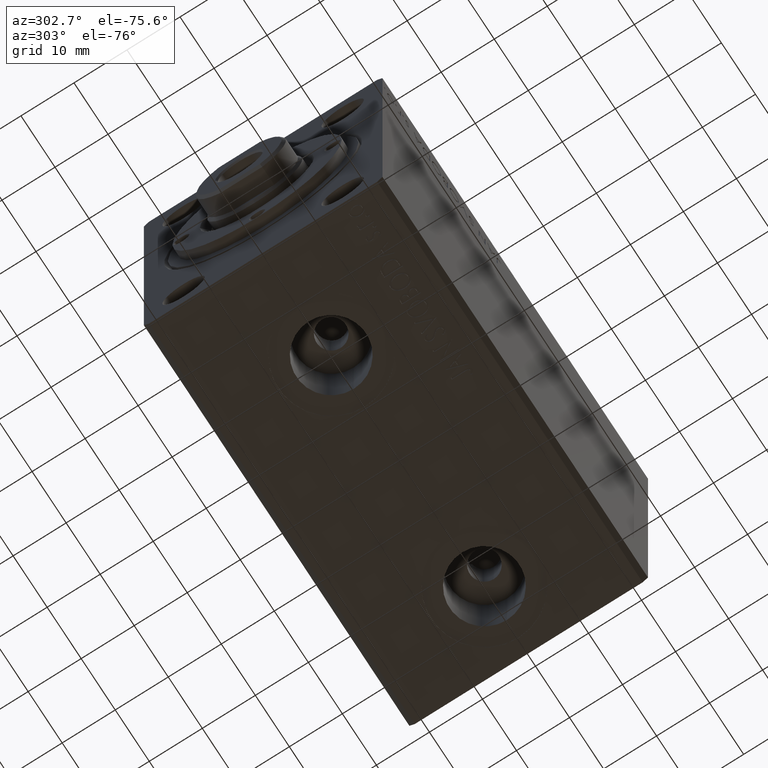
[diagram: clean part render]
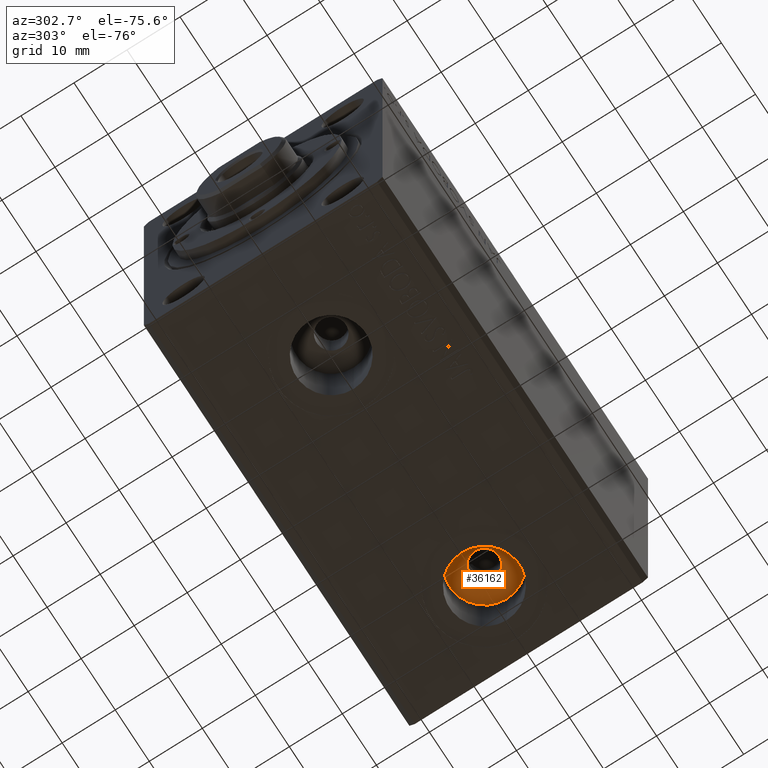
[diagram: same view with one face highlighted and labeled with its STEP entity id]
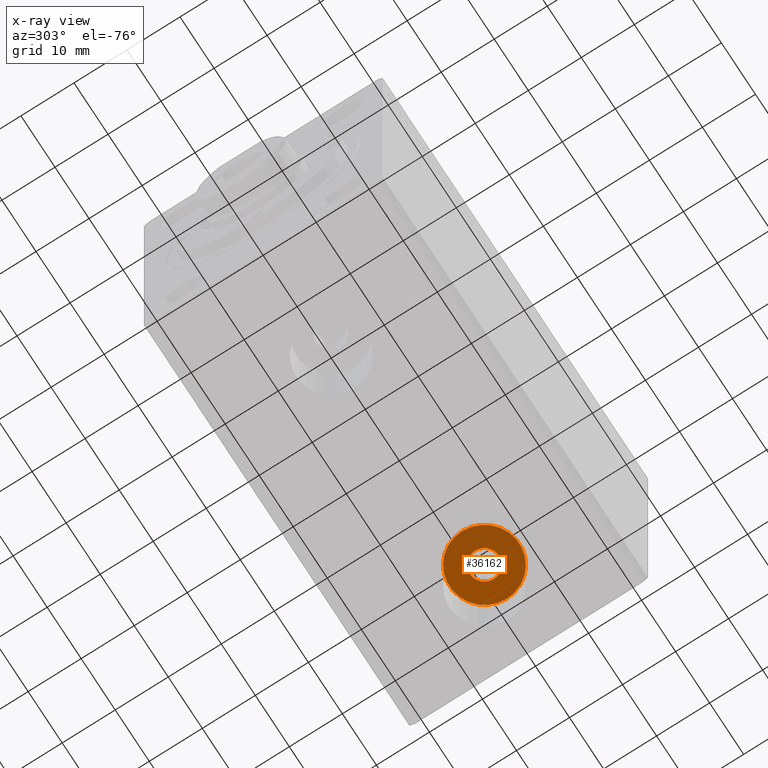
[diagram: x-ray of the same camera — body ghosted, the highlighted face saturated]
A machine part, auxiliary view. The second image highlights one B-rep face of the part: STEP entity #36162.
The next image is the same camera in x-ray: the body ghosted, the highlighted face saturated — about 41% of this face is hidden behind the body in this view.
In plain terms, the highlighted planar face has unit normal (0, 0, -1).
Its self-contained STEP definition (entity closure, byte-faithful):
#1554 = PLANE ( 'NONE',  #20121 ) ;
#2018 = DIRECTION ( 'NONE',  ( -1.000000000000000000, 0.000000000000000000, 0.000000000000000000 ) ) ;
#2258 = VERTEX_POINT ( 'NONE', #10953 ) ;
#3933 = EDGE_LOOP ( 'NONE', ( #43884, #7906 ) ) ;
#4735 = CIRCLE ( 'NONE', #42471, 2.750000000000009326 ) ;
#4754 = EDGE_CURVE ( 'NONE', #35639, #2258, #35853, .T. ) ;
#5337 = CIRCLE ( 'NONE', #43115, 2.750000000000009326 ) ;
#5591 = CARTESIAN_POINT ( 'NONE',  ( 65.00000000000000000, -2.932151633266152588E-15, -18.79999999999999716 ) ) ;
#5747 = DIRECTION ( 'NONE',  ( 0.000000000000000000, 0.000000000000000000, -1.000000000000000000 ) ) ;
#6186 = EDGE_CURVE ( 'NONE', #2258, #35639, #25211, .T. ) ;
#7906 = ORIENTED_EDGE ( 'NONE', *, *, #12860, .F. ) ;
#8025 = DIRECTION ( 'NONE',  ( -1.000000000000000000, 0.000000000000000000, -0.000000000000000000 ) ) ;
#8677 = FACE_OUTER_BOUND ( 'NONE', #43468, .T. ) ;
#8720 = EDGE_CURVE ( 'NONE', #25060, #20376, #5337, .T. ) ;
#10059 = ORIENTED_EDGE ( 'NONE', *, *, #6186, .T. ) ;
#10953 = CARTESIAN_POINT ( 'NONE',  ( 58.42000000000000171, -2.932151633266152588E-15, -18.79999999999999716 ) ) ;
#12078 = DIRECTION ( 'NONE',  ( -1.000000000000000000, 0.000000000000000000, 0.000000000000000000 ) ) ;
#12447 = CARTESIAN_POINT ( 'NONE',  ( 65.00000000000000000, -2.932151633266152588E-15, -18.79999999999999716 ) ) ;
#12670 = CARTESIAN_POINT ( 'NONE',  ( 65.00000000000000000, 0.000000000000000000, -18.79999999999999716 ) ) ;
#12860 = EDGE_CURVE ( 'NONE', #20376, #25060, #4735, .T. ) ;
#13242 = ORIENTED_EDGE ( 'NONE', *, *, #4754, .T. ) ;
#16633 = AXIS2_PLACEMENT_3D ( 'NONE', #5591, #32572, #2018 ) ;
#20121 = AXIS2_PLACEMENT_3D ( 'NONE', #25643, #24770, #8025 ) ;
#20376 = VERTEX_POINT ( 'NONE', #21896 ) ;
#21643 = FACE_BOUND ( 'NONE', #3933, .T. ) ;
#21896 = CARTESIAN_POINT ( 'NONE',  ( 67.75000000000000000, 3.367778697655240240E-16, -18.79999999999999716 ) ) ;
#23371 = DIRECTION ( 'NONE',  ( -1.000000000000000000, 0.000000000000000000, 0.000000000000000000 ) ) ;
#24770 = DIRECTION ( 'NONE',  ( 0.000000000000000000, 0.000000000000000000, -1.000000000000000000 ) ) ;
#25060 = VERTEX_POINT ( 'NONE', #36104 ) ;
#25211 = CIRCLE ( 'NONE', #31646, 6.580000000000002736 ) ;
#25643 = CARTESIAN_POINT ( 'NONE',  ( 0.000000000000000000, 0.000000000000000000, -18.79999999999999716 ) ) ;
#25812 = CARTESIAN_POINT ( 'NONE',  ( 71.57999999999999829, -2.126334039427193546E-15, -18.79999999999999716 ) ) ;
#28815 = DIRECTION ( 'NONE',  ( 0.000000000000000000, 0.000000000000000000, -1.000000000000000000 ) ) ;
#31646 = AXIS2_PLACEMENT_3D ( 'NONE', #12447, #5747, #36964 ) ;
#32572 = DIRECTION ( 'NONE',  ( 0.000000000000000000, 0.000000000000000000, -1.000000000000000000 ) ) ;
#33187 = DIRECTION ( 'NONE',  ( 0.000000000000000000, 0.000000000000000000, -1.000000000000000000 ) ) ;
#35502 = CARTESIAN_POINT ( 'NONE',  ( 65.00000000000000000, 0.000000000000000000, -18.79999999999999716 ) ) ;
#35639 = VERTEX_POINT ( 'NONE', #25812 ) ;
#35853 = CIRCLE ( 'NONE', #16633, 6.580000000000002736 ) ;
#36104 = CARTESIAN_POINT ( 'NONE',  ( 62.24999999999999289, 0.000000000000000000, -18.79999999999999716 ) ) ;
#36162 = ADVANCED_FACE ( 'NONE', ( #21643, #8677 ), #1554, .T. ) ;
#36964 = DIRECTION ( 'NONE',  ( -1.000000000000000000, 0.000000000000000000, 0.000000000000000000 ) ) ;
#42471 = AXIS2_PLACEMENT_3D ( 'NONE', #12670, #33187, #23371 ) ;
#43115 = AXIS2_PLACEMENT_3D ( 'NONE', #35502, #28815, #12078 ) ;
#43468 = EDGE_LOOP ( 'NONE', ( #10059, #13242 ) ) ;
#43884 = ORIENTED_EDGE ( 'NONE', *, *, #8720, .F. ) ;